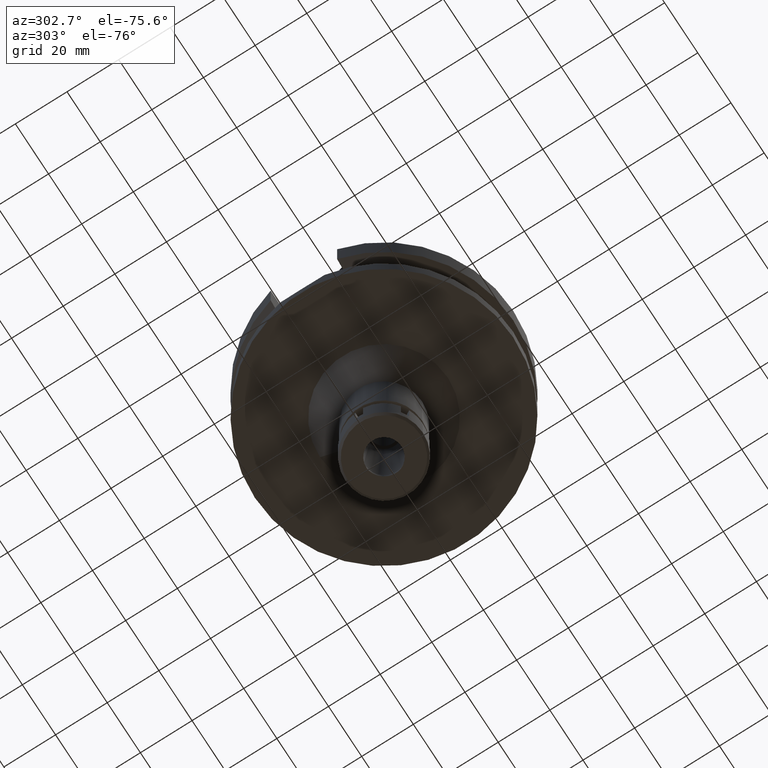
[diagram: clean part render]
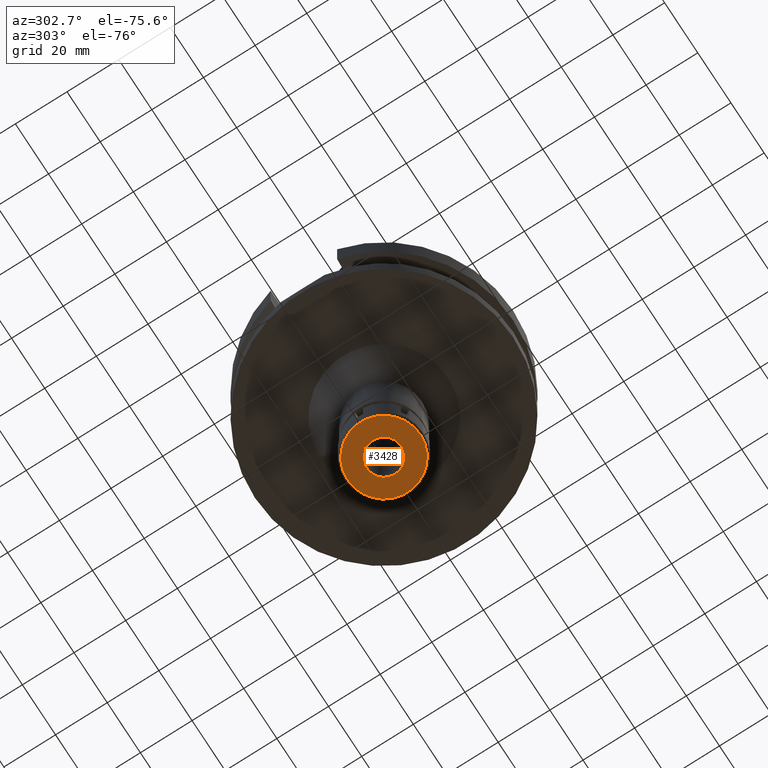
[diagram: same view with one face highlighted and labeled with its STEP entity id]
A machine part, auxiliary view. The second image highlights one B-rep face of the part: STEP entity #3428.
In plain terms, the highlighted planar face has unit normal (0, 0, -1).
Its self-contained STEP definition (entity closure, byte-faithful):
#4 = DIRECTION ( 'NONE',  ( 0.0000000000000000000, 1.000000000000000000, 0.0000000000000000000 ) ) ;
#130 = CARTESIAN_POINT ( 'NONE',  ( 0.0000000000000000000, 6.750000000000000000, -12.50000000000000000 ) ) ;
#158 = VERTEX_POINT ( 'NONE', #3160 ) ;
#162 = AXIS2_PLACEMENT_3D ( 'NONE', #2024, #2865, #4 ) ;
#289 = DIRECTION ( 'NONE',  ( 0.0000000000000000000, 0.0000000000000000000, -1.000000000000000000 ) ) ;
#486 = PLANE ( 'NONE',  #2533 ) ;
#490 = DIRECTION ( 'NONE',  ( 0.0000000000000000000, -1.000000000000000000, 0.0000000000000000000 ) ) ;
#500 = DIRECTION ( 'NONE',  ( 0.0000000000000000000, 0.0000000000000000000, -1.000000000000000000 ) ) ;
#579 = ORIENTED_EDGE ( 'NONE', *, *, #724, .F. ) ;
#724 = EDGE_CURVE ( 'NONE', #1970, #158, #859, .T. ) ;
#749 = CIRCLE ( 'NONE', #162, 14.09999999999999964 ) ;
#771 = CARTESIAN_POINT ( 'NONE',  ( 0.0000000000000000000, 0.0000000000000000000, -12.50000000000000000 ) ) ;
#857 = DIRECTION ( 'NONE',  ( 0.0000000000000000000, -1.000000000000000000, 0.0000000000000000000 ) ) ;
#859 = CIRCLE ( 'NONE', #3539, 6.750000000000000000 ) ;
#881 = EDGE_CURVE ( 'NONE', #3618, #3048, #1799, .T. ) ;
#1276 = CIRCLE ( 'NONE', #2114, 6.750000000000000000 ) ;
#1520 = CARTESIAN_POINT ( 'NONE',  ( 0.0000000000000000000, -14.09999999999999964, -12.50000000000000000 ) ) ;
#1561 = ORIENTED_EDGE ( 'NONE', *, *, #2101, .F. ) ;
#1602 = CARTESIAN_POINT ( 'NONE',  ( 0.0000000000000000000, 0.0000000000000000000, -12.50000000000000000 ) ) ;
#1610 = CARTESIAN_POINT ( 'NONE',  ( 0.0000000000000000000, 0.0000000000000000000, -12.50000000000000000 ) ) ;
#1799 = CIRCLE ( 'NONE', #3239, 14.09999999999999964 ) ;
#1892 = FACE_OUTER_BOUND ( 'NONE', #3409, .T. ) ;
#1939 = ORIENTED_EDGE ( 'NONE', *, *, #881, .F. ) ;
#1970 = VERTEX_POINT ( 'NONE', #130 ) ;
#2024 = CARTESIAN_POINT ( 'NONE',  ( 0.0000000000000000000, 0.0000000000000000000, -12.50000000000000000 ) ) ;
#2101 = EDGE_CURVE ( 'NONE', #158, #1970, #1276, .T. ) ;
#2114 = AXIS2_PLACEMENT_3D ( 'NONE', #1602, #2226, #490 ) ;
#2226 = DIRECTION ( 'NONE',  ( 0.0000000000000000000, 0.0000000000000000000, -1.000000000000000000 ) ) ;
#2256 = DIRECTION ( 'NONE',  ( 0.0000000000000000000, 0.0000000000000000000, 1.000000000000000000 ) ) ;
#2302 = CARTESIAN_POINT ( 'NONE',  ( 0.0000000000000000000, 14.09999999999999964, -12.50000000000000000 ) ) ;
#2350 = EDGE_CURVE ( 'NONE', #3048, #3618, #749, .T. ) ;
#2477 = DIRECTION ( 'NONE',  ( 0.0000000000000000000, 1.000000000000000000, 0.0000000000000000000 ) ) ;
#2533 = AXIS2_PLACEMENT_3D ( 'NONE', #1610, #289, #857 ) ;
#2590 = DIRECTION ( 'NONE',  ( 0.0000000000000000000, -1.000000000000000000, 0.0000000000000000000 ) ) ;
#2831 = CARTESIAN_POINT ( 'NONE',  ( 0.0000000000000000000, 0.0000000000000000000, -12.50000000000000000 ) ) ;
#2865 = DIRECTION ( 'NONE',  ( 0.0000000000000000000, 0.0000000000000000000, 1.000000000000000000 ) ) ;
#3032 = ORIENTED_EDGE ( 'NONE', *, *, #2350, .F. ) ;
#3036 = FACE_BOUND ( 'NONE', #3262, .T. ) ;
#3048 = VERTEX_POINT ( 'NONE', #2302 ) ;
#3160 = CARTESIAN_POINT ( 'NONE',  ( 0.0000000000000000000, -6.750000000000000000, -12.50000000000000000 ) ) ;
#3239 = AXIS2_PLACEMENT_3D ( 'NONE', #2831, #2256, #2590 ) ;
#3262 = EDGE_LOOP ( 'NONE', ( #579, #1561 ) ) ;
#3409 = EDGE_LOOP ( 'NONE', ( #3032, #1939 ) ) ;
#3428 = ADVANCED_FACE ( 'NONE', ( #1892, #3036 ), #486, .T. ) ;
#3539 = AXIS2_PLACEMENT_3D ( 'NONE', #771, #500, #2477 ) ;
#3618 = VERTEX_POINT ( 'NONE', #1520 ) ;